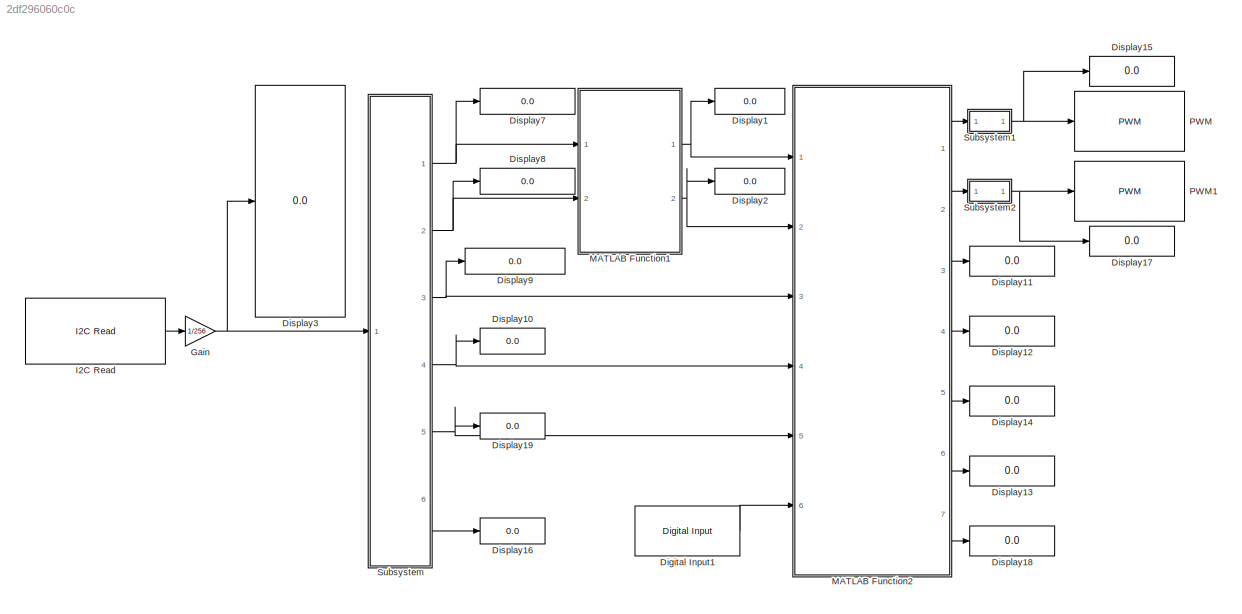
MODEL slx_2df296060c0c
KIND model
CONFIG AbsTol = auto
CONFIG EnableMultiTasking = on
CONFIG FixedStep = auto
CONFIG MaxStep = auto
CONFIG MinStep = auto
CONFIG RelTol = 1e-3
CONFIG SampleTimeConstraint = Unconstrained
CONFIG Solver = FixedStepAuto
CONFIG SolverName = FixedStepAuto
CONFIG StartTime = 0.0
CONFIG StopTime = inf
BLOCK [Reference] Digital Input1  REF=arduinolib/Digital Input
  Ports = [0, 1]
  SourceBlock = arduinolib/Digital Input
  SourceProductBaseCode = ARDUINO
  SourceProductName = Simulink Support Package for Arduino Hardware
  SourceType = Arduino Digital Input
BLOCK [Display] Display1
  Decimation = 1
  Format = long
  Ports = [1]
BLOCK [Display] Display10
  Decimation = 1
  Format = long
  Ports = [1]
BLOCK [Display] Display11
  Decimation = 1
  Ports = [1]
BLOCK [Display] Display12
  Decimation = 1
  Ports = [1]
BLOCK [Display] Display13
  Decimation = 1
  Ports = [1]
BLOCK [Display] Display14
  Decimation = 1
  Ports = [1]
BLOCK [Display] Display15
  Decimation = 1
  Ports = [1]
BLOCK [Display] Display16
  Decimation = 1
  Ports = [1]
BLOCK [Display] Display17
  Decimation = 1
  Ports = [1]
BLOCK [Display] Display18
  Decimation = 1
  Ports = [1]
BLOCK [Display] Display19
  Decimation = 1
  Format = long
  Ports = [1]
BLOCK [Display] Display2
  Decimation = 1
  Format = long
  Ports = [1]
BLOCK [Display] Display3
  Decimation = 1
  Format = long
  Ports = [1]
BLOCK [Display] Display7
  Decimation = 1
  Format = long
  Ports = [1]
BLOCK [Display] Display8
  Decimation = 1
  Format = long
  Ports = [1]
BLOCK [Display] Display9
  Decimation = 1
  Format = long
  Ports = [1]
BLOCK [Gain] Gain
  Gain = 1/256
  OutDataTypeStr = double
  ParamDataTypeStr = Inherit: Inherit via internal rule
  SaturateOnIntegerOverflow = off
BLOCK [Reference] I2C Read  REF=arduinolib/I2C Read
  Ports = [0, 1]
  SourceBlock = arduinolib/I2C Read
  SourceProductBaseCode = ARDUINO
  SourceProductName = Simulink Support Package for Arduino Hardware
  SourceType = I2C Read
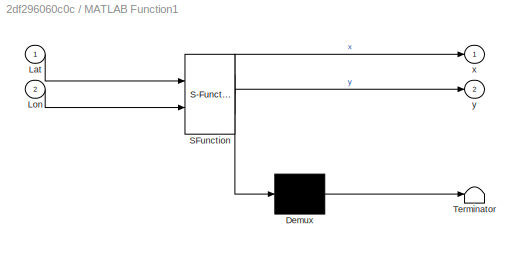
BLOCK [SubSystem] MATLAB Function1
  ErrorFcn = Stateflow.Translate.translate
  PermitHierarchicalResolution = ExplicitOnly
  Ports = [2, 2]
  RequestExecContextInheritance = off
  SFBlockType = MATLAB Function
  TreatAsAtomicUnit = on
BLOCK [Demux] MATLAB Function1/ Demux 
  Outputs = 1
  Ports = [1, 1]
BLOCK [S-Function] MATLAB Function1/ SFunction 
  EnableBusSupport = on
  FunctionName = sf_sfun
  PortCounts = [2 3]
  Ports = [2, 3]
  SFcnIsStateOwnerBlock = off
  SFunctionDeploymentMode = off
  Tag = Stateflow S-Function Autovessel_manovrering_med_2thrustere_maa_videreutvikles 1
BLOCK [Terminator] MATLAB Function1/ Terminator 
BLOCK [Inport] MATLAB Function1/Lat
  IconDisplay = Port number
BLOCK [Inport] MATLAB Function1/Lon
  IconDisplay = Port number
  Port = 2
BLOCK [Outport] MATLAB Function1/x
  IconDisplay = Port number
BLOCK [Outport] MATLAB Function1/y
  IconDisplay = Port number
  Port = 2
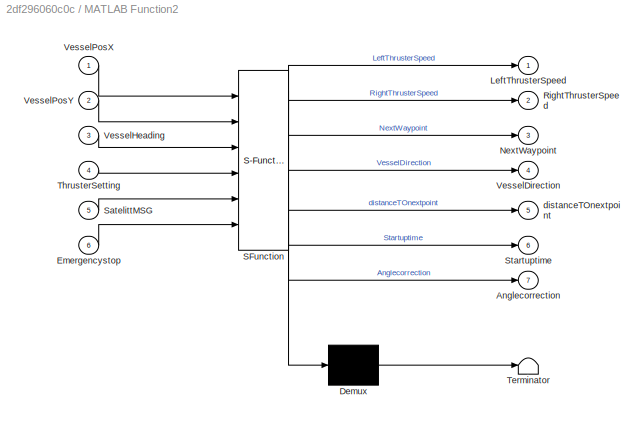
BLOCK [SubSystem] MATLAB Function2
  ErrorFcn = Stateflow.Translate.translate
  PermitHierarchicalResolution = ExplicitOnly
  Ports = [6, 7]
  RequestExecContextInheritance = off
  SFBlockType = MATLAB Function
  TreatAsAtomicUnit = on
BLOCK [Demux] MATLAB Function2/ Demux 
  Outputs = 1
  Ports = [1, 1]
BLOCK [S-Function] MATLAB Function2/ SFunction 
  EnableBusSupport = on
  FunctionName = sf_sfun
  PortCounts = [6 8]
  Ports = [6, 8]
  SFcnIsStateOwnerBlock = off
  SFunctionDeploymentMode = off
  Tag = Stateflow S-Function Autovessel_manovrering_med_2thrustere_maa_videreutvikles 2
BLOCK [Terminator] MATLAB Function2/ Terminator 
BLOCK [Outport] MATLAB Function2/Anglecorrection
  IconDisplay = Port number
  Port = 7
BLOCK [Inport] MATLAB Function2/Emergencystop
  IconDisplay = Port number
  Port = 6
BLOCK [Outport] MATLAB Function2/LeftThrusterSpeed
  IconDisplay = Port number
BLOCK [Outport] MATLAB Function2/NextWaypoint
  IconDisplay = Port number
  Port = 3
BLOCK [Outport] MATLAB Function2/RightThrusterSpeed
  IconDisplay = Port number
  Port = 2
BLOCK [Inport] MATLAB Function2/SatelittMSG
  IconDisplay = Port number
  Port = 5
BLOCK [Outport] MATLAB Function2/Startuptime
  IconDisplay = Port number
  Port = 6
BLOCK [Inport] MATLAB Function2/ThrusterSetting
  IconDisplay = Port number
  Port = 4
BLOCK [Outport] MATLAB Function2/VesselDirection
  IconDisplay = Port number
  Port = 4
BLOCK [Inport] MATLAB Function2/VesselHeading
  IconDisplay = Port number
  Port = 3
BLOCK [Inport] MATLAB Function2/VesselPosX
  IconDisplay = Port number
BLOCK [Inport] MATLAB Function2/VesselPosY
  IconDisplay = Port number
  Port = 2
BLOCK [Outport] MATLAB Function2/distanceTOnextpoint
  IconDisplay = Port number
  Port = 5
BLOCK [Reference] PWM  REF=arduinolib/PWM
  Ports = [1]
  SourceBlock = arduinolib/PWM
  SourceProductBaseCode = ARDUINO
  SourceProductName = Simulink Support Package for Arduino Hardware
  SourceType = Arduino PWM
BLOCK [Reference] PWM1  REF=arduinolib/PWM
  Ports = [1]
  SourceBlock = arduinolib/PWM
  SourceProductBaseCode = ARDUINO
  SourceProductName = Simulink Support Package for Arduino Hardware
  SourceType = Arduino PWM
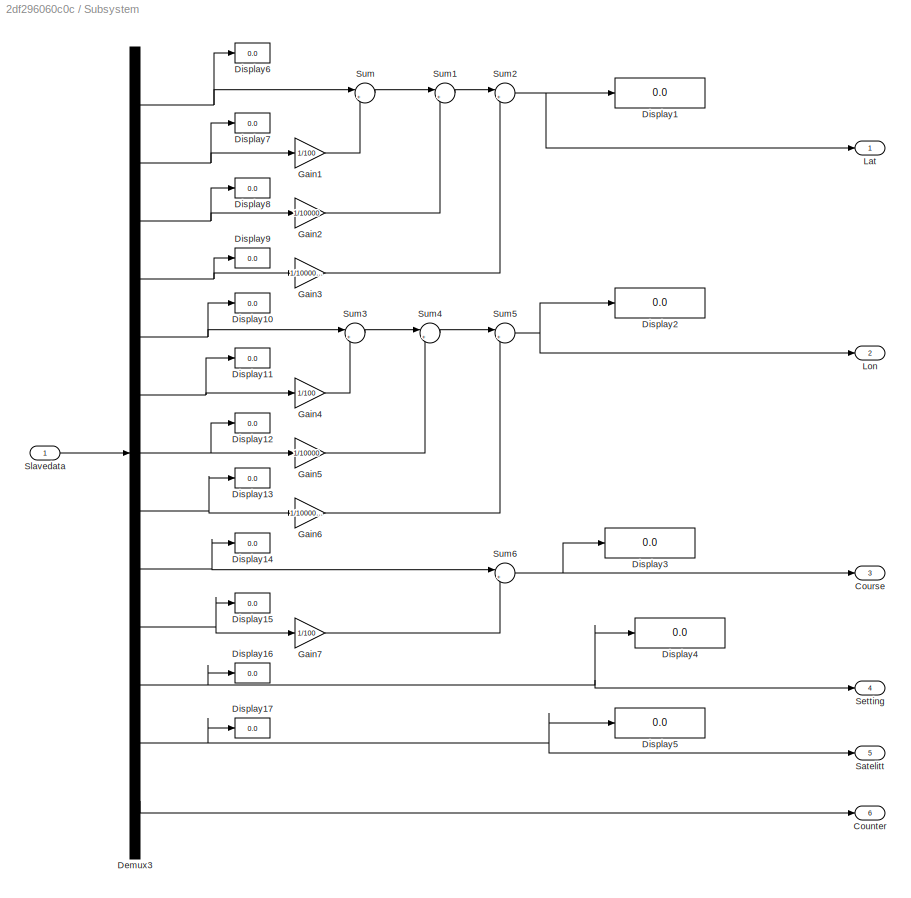
BLOCK [SubSystem] Subsystem
  Ports = [1, 6]
  RequestExecContextInheritance = off
BLOCK [Outport] Subsystem/Counter
  IconDisplay = Port number
  Port = 6
BLOCK [Outport] Subsystem/Course
  IconDisplay = Port number
  Port = 3
BLOCK [Demux] Subsystem/Demux3
  DisplayOption = bar
  Outputs = 13
  Ports = [1, 13]
BLOCK [Display] Subsystem/Display1
  Decimation = 1
  Format = decimal (Stored Integer)
  Ports = [1]
BLOCK [Display] Subsystem/Display10
  Decimation = 1
  Ports = [1]
BLOCK [Display] Subsystem/Display11
  Decimation = 1
  Ports = [1]
BLOCK [Display] Subsystem/Display12
  Decimation = 1
  Ports = [1]
BLOCK [Display] Subsystem/Display13
  Decimation = 1
  Ports = [1]
BLOCK [Display] Subsystem/Display14
  Decimation = 1
  Ports = [1]
BLOCK [Display] Subsystem/Display15
  Decimation = 1
  Ports = [1]
BLOCK [Display] Subsystem/Display16
  Decimation = 1
  Ports = [1]
BLOCK [Display] Subsystem/Display17
  Decimation = 1
  Ports = [1]
BLOCK [Display] Subsystem/Display2
  Decimation = 1
  Format = decimal (Stored Integer)
  Ports = [1]
BLOCK [Display] Subsystem/Display3
  Decimation = 1
  Format = decimal (Stored Integer)
  Ports = [1]
BLOCK [Display] Subsystem/Display4
  Decimation = 1
  Format = decimal (Stored Integer)
  Ports = [1]
BLOCK [Display] Subsystem/Display5
  Decimation = 1
  Format = decimal (Stored Integer)
  Ports = [1]
BLOCK [Display] Subsystem/Display6
  Decimation = 1
  Ports = [1]
BLOCK [Display] Subsystem/Display7
  Decimation = 1
  Ports = [1]
BLOCK [Display] Subsystem/Display8
  Decimation = 1
  Ports = [1]
BLOCK [Display] Subsystem/Display9
  Decimation = 1
  Ports = [1]
BLOCK [Gain] Subsystem/Gain1
  Gain = 1/100
  OutDataTypeStr = Inherit: Inherit via internal rule
  ParamDataTypeStr = Inherit: Inherit via internal rule
  SaturateOnIntegerOverflow = off
BLOCK [Gain] Subsystem/Gain2
  Gain = 1/10000
  OutDataTypeStr = Inherit: Inherit via internal rule
  ParamDataTypeStr = Inherit: Inherit via internal rule
  SaturateOnIntegerOverflow = off
BLOCK [Gain] Subsystem/Gain3
  Gain = 1/1000000
  OutDataTypeStr = Inherit: Inherit via internal rule
  ParamDataTypeStr = Inherit: Inherit via internal rule
  SaturateOnIntegerOverflow = off
BLOCK [Gain] Subsystem/Gain4
  Gain = 1/100
  OutDataTypeStr = Inherit: Inherit via internal rule
  ParamDataTypeStr = Inherit: Inherit via internal rule
  SaturateOnIntegerOverflow = off
BLOCK [Gain] Subsystem/Gain5
  Gain = 1/10000
  OutDataTypeStr = Inherit: Inherit via internal rule
  ParamDataTypeStr = Inherit: Inherit via internal rule
  SaturateOnIntegerOverflow = off
BLOCK [Gain] Subsystem/Gain6
  Gain = 1/1000000
  OutDataTypeStr = Inherit: Inherit via internal rule
  ParamDataTypeStr = Inherit: Inherit via internal rule
  SaturateOnIntegerOverflow = off
BLOCK [Gain] Subsystem/Gain7
  Gain = 1/100
  OutDataTypeStr = Inherit: Inherit via internal rule
  ParamDataTypeStr = Inherit: Inherit via internal rule
  SaturateOnIntegerOverflow = off
BLOCK [Outport] Subsystem/Lat
  IconDisplay = Port number
BLOCK [Outport] Subsystem/Lon
  IconDisplay = Port number
  Port = 2
BLOCK [Outport] Subsystem/Satelitt
  IconDisplay = Port number
  Port = 5
BLOCK [Outport] Subsystem/Setting
  IconDisplay = Port number
  Port = 4
BLOCK [Inport] Subsystem/Slavedata
  IconDisplay = Port number
BLOCK [Sum] Subsystem/Sum
  IconShape = round
  InputSameDT = off
  Inputs = |++
  OutDataTypeStr = Inherit: Inherit via internal rule
  Ports = [2, 1]
  SaturateOnIntegerOverflow = off
BLOCK [Sum] Subsystem/Sum1
  IconShape = round
  InputSameDT = off
  Inputs = |++
  OutDataTypeStr = Inherit: Inherit via internal rule
  Ports = [2, 1]
  SaturateOnIntegerOverflow = off
BLOCK [Sum] Subsystem/Sum2
  IconShape = round
  InputSameDT = off
  Inputs = |++
  OutDataTypeStr = Inherit: Inherit via internal rule
  Ports = [2, 1]
  SaturateOnIntegerOverflow = off
BLOCK [Sum] Subsystem/Sum3
  IconShape = round
  InputSameDT = off
  Inputs = |++
  OutDataTypeStr = Inherit: Inherit via internal rule
  Ports = [2, 1]
  SaturateOnIntegerOverflow = off
BLOCK [Sum] Subsystem/Sum4
  IconShape = round
  InputSameDT = off
  Inputs = |++
  OutDataTypeStr = Inherit: Inherit via internal rule
  Ports = [2, 1]
  SaturateOnIntegerOverflow = off
BLOCK [Sum] Subsystem/Sum5
  IconShape = round
  InputSameDT = off
  Inputs = |++
  OutDataTypeStr = Inherit: Inherit via internal rule
  Ports = [2, 1]
  SaturateOnIntegerOverflow = off
BLOCK [Sum] Subsystem/Sum6
  IconShape = round
  InputSameDT = off
  Inputs = |++
  OutDataTypeStr = Inherit: Inherit via internal rule
  Ports = [2, 1]
  SaturateOnIntegerOverflow = off
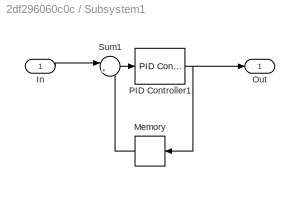
BLOCK [SubSystem] Subsystem1
  Ports = [1, 1]
  RequestExecContextInheritance = off
BLOCK [Inport] Subsystem1/In
  IconDisplay = Port number
BLOCK [Memory] Subsystem1/Memory
  InheritSampleTime = on
BLOCK [Outport] Subsystem1/Out
  IconDisplay = Port number
BLOCK [Reference] Subsystem1/PID Controller1  REF=simulink/Continuous/PID Controller
  Ports = [1, 1]
  SourceBlock = simulink/Continuous/PID Controller
  SourceProductBaseCode = SL
  SourceProductName = Simulink
  SourceType = PID 1dof
BLOCK [Sum] Subsystem1/Sum1
  IconShape = round
  InputSameDT = off
  Inputs = |+-
  OutDataTypeStr = Inherit: Inherit via internal rule
  Ports = [2, 1]
  SaturateOnIntegerOverflow = off
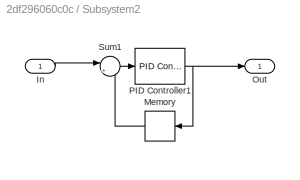
BLOCK [SubSystem] Subsystem2
  Ports = [1, 1]
  RequestExecContextInheritance = off
BLOCK [Inport] Subsystem2/In
  IconDisplay = Port number
BLOCK [Memory] Subsystem2/Memory
  InheritSampleTime = on
BLOCK [Outport] Subsystem2/Out
  IconDisplay = Port number
BLOCK [Reference] Subsystem2/PID Controller1  REF=simulink/Continuous/PID Controller
  Ports = [1, 1]
  SourceBlock = simulink/Continuous/PID Controller
  SourceProductBaseCode = SL
  SourceProductName = Simulink
  SourceType = PID 1dof
BLOCK [Sum] Subsystem2/Sum1
  IconShape = round
  InputSameDT = off
  Inputs = |+-
  OutDataTypeStr = Inherit: Inherit via internal rule
  Ports = [2, 1]
  SaturateOnIntegerOverflow = off
LINE Digital Input1:1 -> MATLAB Function2:6
NET Gain:1 -> Display3:1, Subsystem:1
LINE I2C Read:1 -> Gain:1
NET MATLAB Function1:1 -> Display1:1, MATLAB Function2:1
NET MATLAB Function1:2 -> Display2:1, MATLAB Function2:2
LINE MATLAB Function2:1 -> Subsystem1:1
LINE MATLAB Function2:2 -> Subsystem2:1
LINE MATLAB Function2:3 -> Display11:1
LINE MATLAB Function2:4 -> Display12:1
LINE MATLAB Function2:5 -> Display14:1
LINE MATLAB Function2:6 -> Display13:1
LINE MATLAB Function2:7 -> Display18:1
NET Subsystem/Demux3:1 -> Subsystem/Display6:1, Subsystem/Sum:1
NET Subsystem/Demux3:10 -> Subsystem/Display15:1, Subsystem/Gain7:1
NET Subsystem/Demux3:11 -> Subsystem/Display16:1, Subsystem/Display4:1, Subsystem/Setting:1
NET Subsystem/Demux3:12 -> Subsystem/Display17:1, Subsystem/Display5:1, Subsystem/Satelitt:1
LINE Subsystem/Demux3:13 -> Subsystem/Counter:1
NET Subsystem/Demux3:2 -> Subsystem/Display7:1, Subsystem/Gain1:1
NET Subsystem/Demux3:3 -> Subsystem/Display8:1, Subsystem/Gain2:1
NET Subsystem/Demux3:4 -> Subsystem/Display9:1, Subsystem/Gain3:1
NET Subsystem/Demux3:5 -> Subsystem/Display10:1, Subsystem/Sum3:1
NET Subsystem/Demux3:6 -> Subsystem/Display11:1, Subsystem/Gain4:1
NET Subsystem/Demux3:7 -> Subsystem/Display12:1, Subsystem/Gain5:1
NET Subsystem/Demux3:8 -> Subsystem/Display13:1, Subsystem/Gain6:1
NET Subsystem/Demux3:9 -> Subsystem/Display14:1, Subsystem/Sum6:1
LINE Subsystem/Gain1:1 -> Subsystem/Sum:2
LINE Subsystem/Gain2:1 -> Subsystem/Sum1:2
LINE Subsystem/Gain3:1 -> Subsystem/Sum2:2
LINE Subsystem/Gain4:1 -> Subsystem/Sum3:2
LINE Subsystem/Gain5:1 -> Subsystem/Sum4:2
LINE Subsystem/Gain6:1 -> Subsystem/Sum5:2
LINE Subsystem/Gain7:1 -> Subsystem/Sum6:2
LINE Subsystem/Slavedata:1 -> Subsystem/Demux3:1
LINE Subsystem/Sum1:1 -> Subsystem/Sum2:1
NET Subsystem/Sum2:1 -> Subsystem/Display1:1, Subsystem/Lat:1
LINE Subsystem/Sum3:1 -> Subsystem/Sum4:1
LINE Subsystem/Sum4:1 -> Subsystem/Sum5:1
NET Subsystem/Sum5:1 -> Subsystem/Display2:1, Subsystem/Lon:1
NET Subsystem/Sum6:1 -> Subsystem/Course:1, Subsystem/Display3:1
LINE Subsystem/Sum:1 -> Subsystem/Sum1:1
LINE Subsystem1/In:1 -> Subsystem1/Sum1:1
LINE Subsystem1/Memory:1 -> Subsystem1/Sum1:2
NET Subsystem1/PID Controller1:1 -> Subsystem1/Memory:1, Subsystem1/Out:1
LINE Subsystem1/Sum1:1 -> Subsystem1/PID Controller1:1
NET Subsystem1:1 -> Display15:1, PWM:1
LINE Subsystem2/In:1 -> Subsystem2/Sum1:1
LINE Subsystem2/Memory:1 -> Subsystem2/Sum1:2
NET Subsystem2/PID Controller1:1 -> Subsystem2/Memory:1, Subsystem2/Out:1
LINE Subsystem2/Sum1:1 -> Subsystem2/PID Controller1:1
NET Subsystem2:1 -> Display17:1, PWM1:1
NET Subsystem:1 -> Display7:1, MATLAB Function1:1
NET Subsystem:2 -> Display8:1, MATLAB Function1:2
NET Subsystem:3 -> Display9:1, MATLAB Function2:3
NET Subsystem:4 -> Display10:1, MATLAB Function2:4
NET Subsystem:5 -> Display19:1, MATLAB Function2:5
LINE Subsystem:6 -> Display16:1
note: NET lines group one-source signal fan-out (src -> all destinations, sorted); 1:1 wires keep LINE
CHART MATLAB Function1 states=1 transitions=1
  STATE_LABEL 'eML_blk_kernel()'
  STATE_LABEL 'SCRIPT:\nfunction  [x,y] = deg2utm(Lat,Lon)\n% -------------------------------------------------------------------------\n% [x,y,utmzone] = deg2utm(Lat,Lon)\n%\n% Description: Function to convert lat/lon vectors into UTM coordinates (WGS84).\n% Some code has been extracted from UTM.m function by Gabriel Ruiz Martinez.\n%\n% Inputs:\n%    Lat: Latitude vector.   Degrees.  +ddd.ddddd  WGS84\n%    Lon: Longitu...<+3343ch>'
CHART MATLAB Function2 states=1 transitions=1
  STATE_LABEL 'eML_blk_kernel()'
  STATE_LABEL 'SCRIPT:\nfunction [LeftThrusterSpeed, RightThrusterSpeed, NextWaypoint, VesselDirection, distanceTOnextpoint, Startuptime, Anglecorrection] = NavigationLOS(VesselPosX, VesselPosY, VesselHeading, ThrusterSetting, SatelittMSG, Emergencystop)\n\n%% Parameters\n%Rk=Cirkcle sorounding waypoints\n%Rv = LOS circle surrounding the vessel\n%X_k = X posision, next waypoint\n%Y_k = Y posision, next waypoint\n%X_k_1 ...<+3608ch>'
